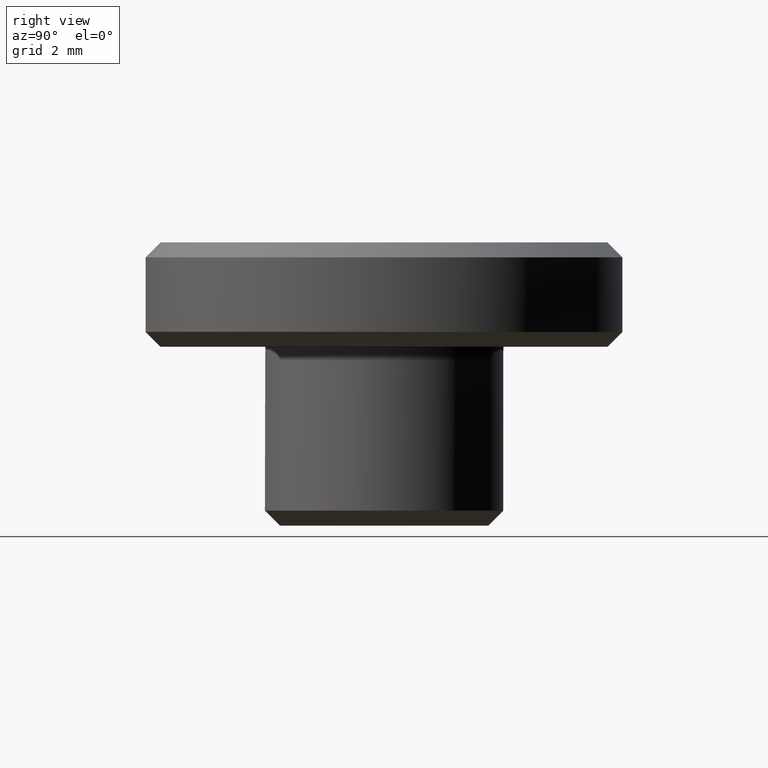
[diagram: clean part render]
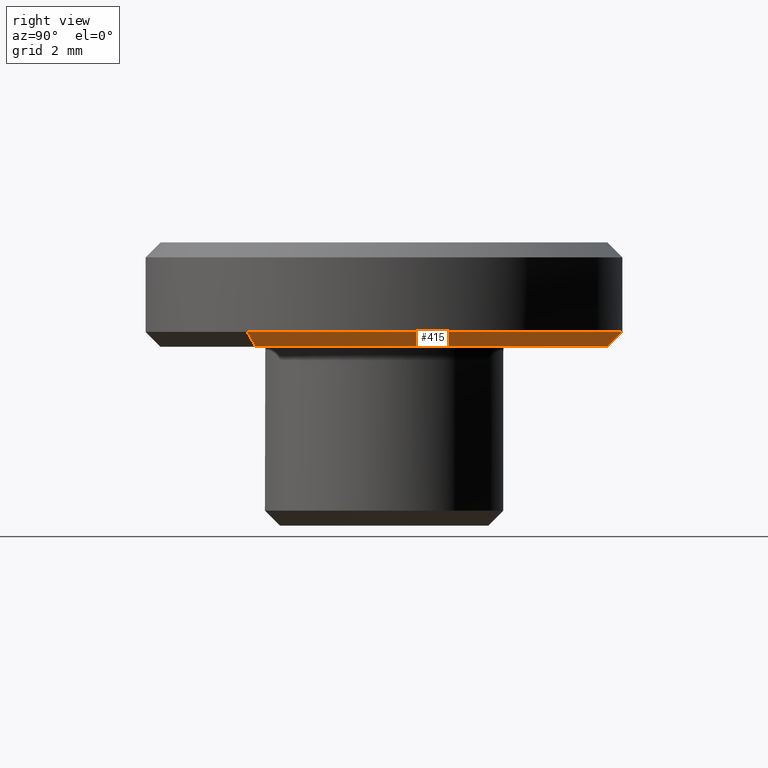
[diagram: same view with one face highlighted and labeled with its STEP entity id]
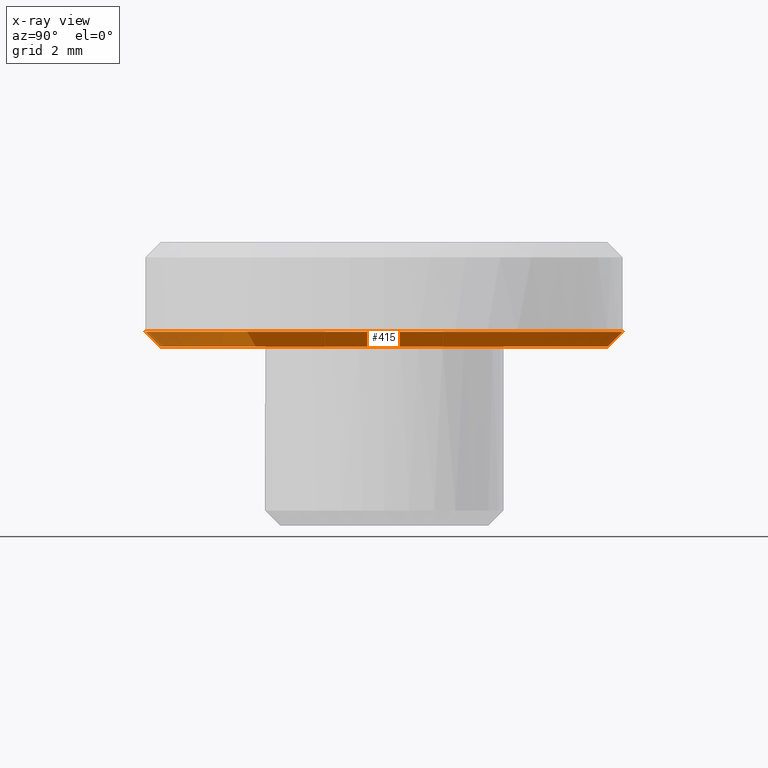
[diagram: x-ray of the same camera — body ghosted, the highlighted face saturated]
A machine part, right view. The second image highlights one B-rep face of the part: STEP entity #415.
The next image is the same camera in x-ray: the body ghosted, the highlighted face saturated — about 21% of this face is hidden behind the body in this view.
In plain terms, the highlighted face is a freeform B-spline surface patch.
Its self-contained STEP definition (entity closure, byte-faithful):
#260=CARTESIAN_POINT('',(6.131260018922354,-4.297709486501394,5.987500000000000));
#261=CARTESIAN_POINT('',(7.508148326900433,-2.333393317680959,5.987500000000001));
#262=CARTESIAN_POINT('',(7.487214898942968,0.065339934544075,5.987499999999999));
#263=CARTESIAN_POINT('',(7.421874964398892,7.552554833487053,5.987500000000000));
#264=CARTESIAN_POINT('',(-0.065339934544085,7.487214898942979,5.987499999999999));
#265=CARTESIAN_POINT('',(-7.552554833487065,7.421874964398904,5.987500000000000));
#266=CARTESIAN_POINT('',(-7.487214898942989,-0.065339934544075,5.987499999999999));
#267=CARTESIAN_POINT('',(-7.421874964398914,-7.552554833487053,5.987500000000000));
#268=CARTESIAN_POINT('',(0.065339934544064,-7.487214898942979,5.987499999999999));
#269=CARTESIAN_POINT('',(6.561420623755812,-4.599230757236356,6.512812500000001));
#270=CARTESIAN_POINT('',(8.034909484559911,-2.497100920645155,6.512812500000001));
#271=CARTESIAN_POINT('',(8.012507396652675,0.069924092723065,6.512812500000001));
#272=CARTESIAN_POINT('',(7.942583303929611,8.082431489375750,6.512812500000001));
#273=CARTESIAN_POINT('',(-0.069924092723075,8.012507396652685,6.512812500000001));
#274=CARTESIAN_POINT('',(-8.082431489375761,7.942583303929622,6.512812500000001));
#275=CARTESIAN_POINT('',(-8.012507396652696,-0.069924092723065,6.512812500000001));
#276=CARTESIAN_POINT('',(-7.942583303929633,-8.082431489375750,6.512812500000001));
#277=CARTESIAN_POINT('',(0.069924092723054,-8.012507396652685,6.512812500000001));
#285=(BOUNDED_SURFACE()B_SPLINE_SURFACE(2,1,((#260,#269),(#261,#270),(#262,#271),(#263,#272),(#264,#273),(#265,#274),(#266,#275),(#267,#276),(#268,#277)),.UNSPECIFIED.,.F.,.F.,.U.)B_SPLINE_SURFACE_WITH_KNOTS((3,2,2,2,3),(2,2),(0.0,5.310424976404302,18.586487417415050,31.862549858425808,45.138612299436559),(0.0,1.0),.UNSPECIFIED.)GEOMETRIC_REPRESENTATION_ITEM()RATIONAL_B_SPLINE_SURFACE(((0.859411254969543,0.859411254969543),(0.882842712474619,0.882842712474619),(1.0,1.0),(0.707106781186548,0.707106781186548),(1.0,1.0),(0.707106781186548,0.707106781186548),(1.0,1.0),(0.707106781186548,0.707106781186548),(1.0,1.0)))REPRESENTATION_ITEM('')SURFACE());
#286=CARTESIAN_POINT('',(7.499999999999989,0.0,6.0));
#287=VERTEX_POINT('',#286);
#288=CARTESIAN_POINT('',(6.141495845331225,-4.304884293657517,6.000000000000002));
#289=VERTEX_POINT('',#288);
#290=CARTESIAN_POINT('',(7.499999999999989,0.0,6.0));
#291=CARTESIAN_POINT('',(7.499999999999989,-2.366795589611353,5.999999999999999));
#292=CARTESIAN_POINT('',(6.141495845331225,-4.304884293657517,6.000000000000001));
#300=(BOUNDED_CURVE()B_SPLINE_CURVE(2,(#290,#291,#292),.UNSPECIFIED.,.F.,.U.)B_SPLINE_CURVE_WITH_KNOTS((3,3),(0.0,0.098673726202873),.UNSPECIFIED.)CURVE()GEOMETRIC_REPRESENTATION_ITEM()RATIONAL_B_SPLINE_CURVE((1.0,0.884396538880492,0.860049271925871))REPRESENTATION_ITEM(''));
#301=EDGE_CURVE('',#287,#289,#300,.T.);
#302=ORIENTED_EDGE('',*,*,#301,.F.);
#303=CARTESIAN_POINT('',(-7.500000000000010,0.0,6.0));
#304=VERTEX_POINT('',#303);
#305=CARTESIAN_POINT('',(-7.500000000000010,0.0,6.0));
#306=CARTESIAN_POINT('',(-7.500000000000009,7.500000000000000,6.0));
#307=CARTESIAN_POINT('',(-1.065814E-014,7.500000000000000,6.0));
#308=CARTESIAN_POINT('',(7.499999999999989,7.500000000000000,6.0));
#309=CARTESIAN_POINT('',(7.499999999999989,0.0,6.0));
#317=(BOUNDED_CURVE()B_SPLINE_CURVE(2,(#305,#306,#307,#308,#309),.UNSPECIFIED.,.F.,.U.)B_SPLINE_CURVE_WITH_KNOTS((3,2,3),(0.500000000000000,0.750000000000000,1.0),.UNSPECIFIED.)CURVE()GEOMETRIC_REPRESENTATION_ITEM()RATIONAL_B_SPLINE_CURVE((1.0,0.707106781186547,1.0,0.707106781186547,1.0))REPRESENTATION_ITEM(''));
#318=EDGE_CURVE('',#304,#287,#317,.T.);
#319=ORIENTED_EDGE('',*,*,#318,.F.);
#320=CARTESIAN_POINT('',(0.065449016252097,-7.499714422983107,6.000000000001948));
#321=VERTEX_POINT('',#320);
#322=CARTESIAN_POINT('',(0.065449016252097,-7.499714422983107,6.000000000001948));
#323=CARTESIAN_POINT('',(0.032725131169539,-7.500000000000001,6.0));
#324=CARTESIAN_POINT('',(-1.065814E-014,-7.500000000000000,6.0));
#325=CARTESIAN_POINT('',(-7.500000000000009,-7.500000000000000,6.0));
#326=CARTESIAN_POINT('',(-7.500000000000010,0.0,6.0));
#334=(BOUNDED_CURVE()B_SPLINE_CURVE(2,(#322,#323,#324,#325,#326),.UNSPECIFIED.,.F.,.U.)B_SPLINE_CURVE_WITH_KNOTS((3,2,3),(0.248460105664342,0.250000000000000,0.500000000000000),.UNSPECIFIED.)CURVE()GEOMETRIC_REPRESENTATION_ITEM()RATIONAL_B_SPLINE_CURVE((0.996414028098853,0.998195901565586,1.0,0.707106781186547,1.0))REPRESENTATION_ITEM(''));
#335=EDGE_CURVE('',#321,#304,#334,.T.);
#336=ORIENTED_EDGE('',*,*,#335,.F.);
#337=CARTESIAN_POINT('',(0.069812283987217,-7.999695384513414,6.500000000000019));
#338=VERTEX_POINT('',#337);
#339=CARTESIAN_POINT('',(0.065449016252097,-7.499714422983107,6.000000000001948));
#340=CARTESIAN_POINT('',(0.069812283987217,-7.999695384513414,6.500000000000019));
#341=QUASI_UNIFORM_CURVE('',1,(#339,#340),.UNSPECIFIED.,.F.,.U.);
#342=EDGE_CURVE('',#321,#338,#341,.T.);
#343=ORIENTED_EDGE('',*,*,#342,.T.);
#344=CARTESIAN_POINT('',(-8.000000000000011,0.0,6.500000000000000));
#345=VERTEX_POINT('',#344);
#346=CARTESIAN_POINT('',(-8.000000000000011,0.0,6.500000000000000));
#347=CARTESIAN_POINT('',(-8.000000000000011,-8.0,6.500000000000001));
#348=CARTESIAN_POINT('',(-1.065814E-014,-8.0,6.500000000000000));
#349=CARTESIAN_POINT('',(0.034906806565840,-8.0,6.500000000000001));
#350=CARTESIAN_POINT('',(0.069812283987217,-7.999695384513414,6.500000000000019));
#358=(BOUNDED_CURVE()B_SPLINE_CURVE(2,(#346,#347,#348,#349,#350),.UNSPECIFIED.,.F.,.U.)B_SPLINE_CURVE_WITH_KNOTS((3,2,3),(0.0,0.250000000000000,0.251539894334998),.UNSPECIFIED.)CURVE()GEOMETRIC_REPRESENTATION_ITEM()RATIONAL_B_SPLINE_CURVE((1.0,0.707106781186548,1.0,0.998195901566360,0.996414028100381))REPRESENTATION_ITEM(''));
#359=EDGE_CURVE('',#345,#338,#358,.T.);
#360=ORIENTED_EDGE('',*,*,#359,.F.);
#361=CARTESIAN_POINT('',(-0.069806827217457,7.999695432130153,6.500000000000000));
#362=VERTEX_POINT('',#361);
#363=CARTESIAN_POINT('',(-0.069806827217457,7.999695432130153,6.500000000000000));
#364=CARTESIAN_POINT('',(-8.000000000000011,7.930495094530415,6.500000000000002));
#365=CARTESIAN_POINT('',(-8.000000000000011,0.0,6.500000000000000));
#373=(BOUNDED_CURVE()B_SPLINE_CURVE(2,(#363,#364,#365),.UNSPECIFIED.,.F.,.U.)B_SPLINE_CURVE_WITH_KNOTS((3,3),(0.751539774184077,1.0),.UNSPECIFIED.)CURVE()GEOMETRIC_REPRESENTATION_ITEM()RATIONAL_B_SPLINE_CURVE((0.996414306163410,0.708910738854628,1.0))REPRESENTATION_ITEM(''));
#374=EDGE_CURVE('',#362,#345,#373,.T.);
#375=ORIENTED_EDGE('',*,*,#374,.F.);
#376=CARTESIAN_POINT('',(7.999999999999989,0.0,6.500000000000000));
#377=VERTEX_POINT('',#376);
#378=CARTESIAN_POINT('',(7.999999999999989,0.0,6.500000000000000));
#379=CARTESIAN_POINT('',(7.999999999999991,8.0,6.500000000000001));
#380=CARTESIAN_POINT('',(-1.065814E-014,8.0,6.500000000000000));
#381=CARTESIAN_POINT('',(-0.034904078025030,8.0,6.500000000000000));
#382=CARTESIAN_POINT('',(-0.069806827217457,7.999695432130153,6.500000000000000));
#390=(BOUNDED_CURVE()B_SPLINE_CURVE(2,(#378,#379,#380,#381,#382),.UNSPECIFIED.,.F.,.U.)B_SPLINE_CURVE_WITH_KNOTS((3,2,3),(0.500000000000000,0.750000000000000,0.751539774184077),.UNSPECIFIED.)CURVE()GEOMETRIC_REPRESENTATION_ITEM()RATIONAL_B_SPLINE_CURVE((1.0,0.707106781186548,1.0,0.998196042331919,0.996414306163410))REPRESENTATION_ITEM(''));
#391=EDGE_CURVE('',#377,#362,#390,.T.);
#392=ORIENTED_EDGE('',*,*,#391,.F.);
#393=CARTESIAN_POINT('',(6.550928901686220,-4.591876579902039,6.500000000000023));
#394=VERTEX_POINT('',#393);
#395=CARTESIAN_POINT('',(6.550928901686220,-4.591876579902039,6.500000000000023));
#396=CARTESIAN_POINT('',(7.999999999999989,-2.524581962252997,6.500000000000000));
#397=CARTESIAN_POINT('',(7.999999999999989,0.0,6.500000000000000));
#405=(BOUNDED_CURVE()B_SPLINE_CURVE(2,(#395,#396,#397),.UNSPECIFIED.,.F.,.U.)B_SPLINE_CURVE_WITH_KNOTS((3,3),(0.401326273797096,0.500000000000000),.UNSPECIFIED.)CURVE()GEOMETRIC_REPRESENTATION_ITEM()RATIONAL_B_SPLINE_CURVE((0.860049271925856,0.884396538880457,1.0))REPRESENTATION_ITEM(''));
#406=EDGE_CURVE('',#394,#377,#405,.T.);
#407=ORIENTED_EDGE('',*,*,#406,.F.);
#408=CARTESIAN_POINT('',(6.141495845331225,-4.304884293657517,6.000000000000002));
#409=CARTESIAN_POINT('',(6.550928901686220,-4.591876579902039,6.500000000000023));
#410=QUASI_UNIFORM_CURVE('',1,(#408,#409),.UNSPECIFIED.,.F.,.U.);
#411=EDGE_CURVE('',#289,#394,#410,.T.);
#412=ORIENTED_EDGE('',*,*,#411,.F.);
#413=EDGE_LOOP('',(#302,#319,#336,#343,#360,#375,#392,#407,#412));
#414=FACE_OUTER_BOUND('',#413,.T.);
#415=ADVANCED_FACE('',(#414),#285,.T.);